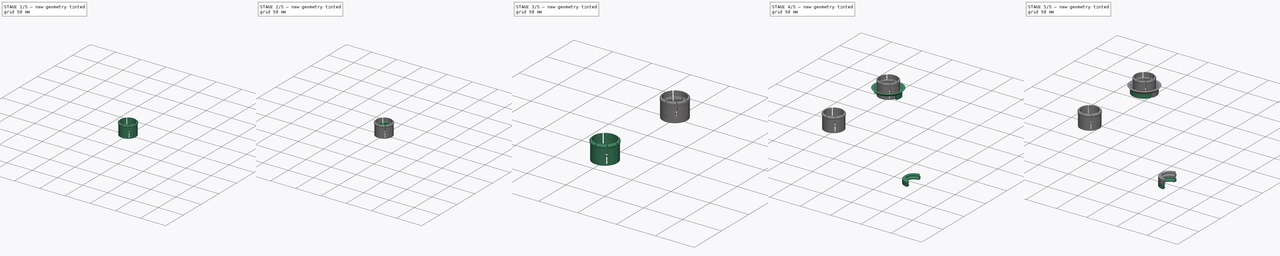
[diagram: build sequence overview — one tinted view per stage of 5, left to right]
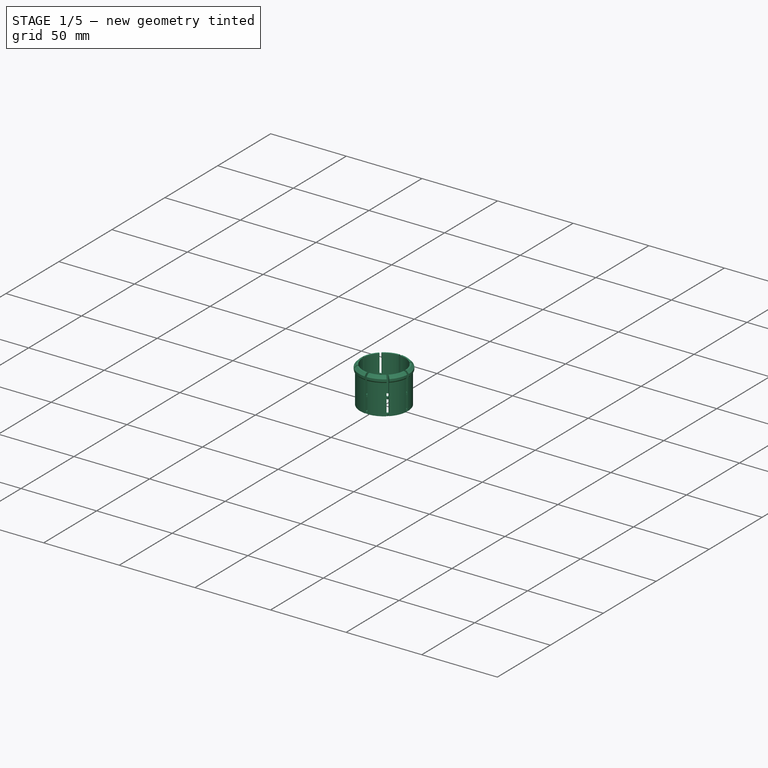
[diagram: stage 1 of 5 — iso view after this stage's code; geometry added in this stage tinted green]
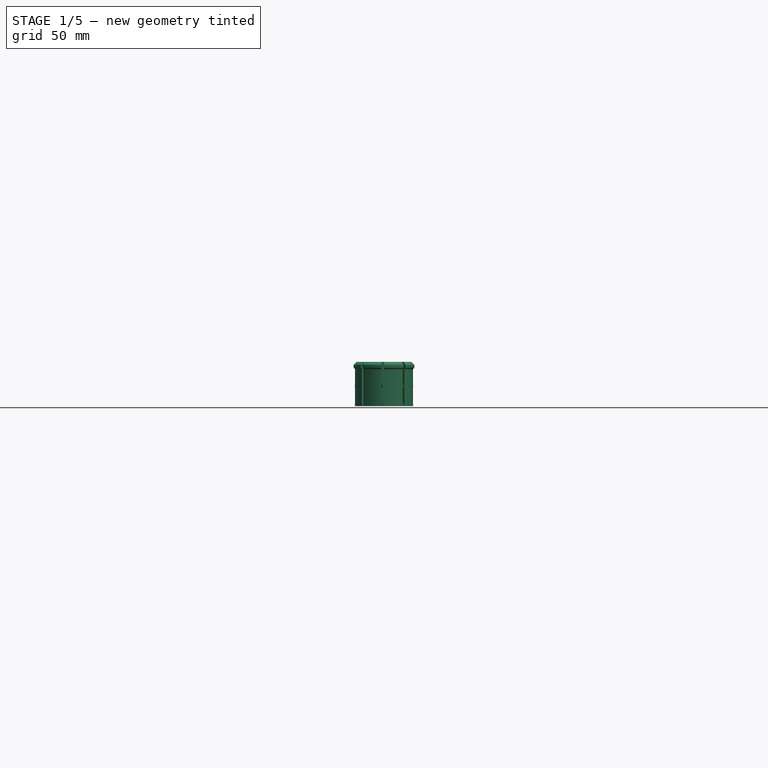
[diagram: stage 1 of 5 — front view after this stage's code; geometry added in this stage tinted green]
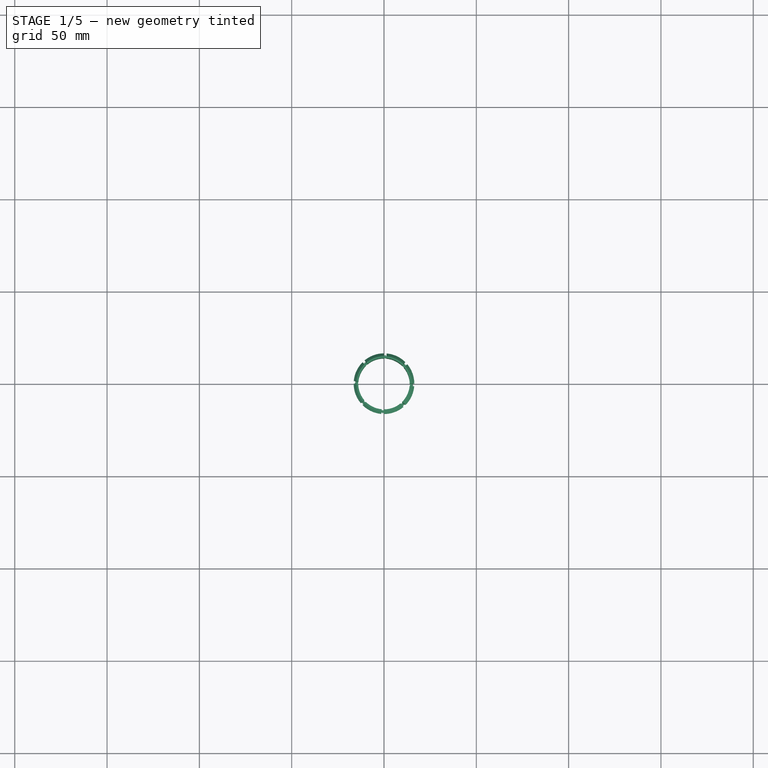
[diagram: stage 1 of 5 — top view after this stage's code; geometry added in this stage tinted green]
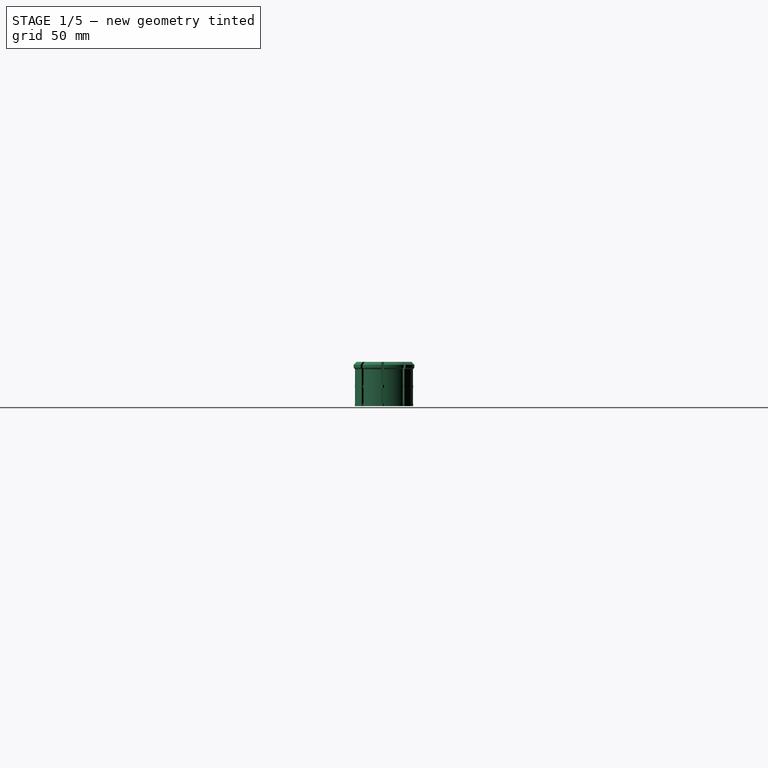
[diagram: stage 1 of 5 — right view after this stage's code; geometry added in this stage tinted green]
FCSTD DOCUMENT  (FreeCAD 0.20R29410 (Git))
Label: the-poor-mans-telescope-eyepiece
License: Attribution-NonCommercial 3.0 Unported (CC BY-NC 3.0)
LicenseURL: https://creativecommons.org/licenses/by-nc/3.0/
objects: Sketcher::SketchObject×15, PartDesign::Revolution×8, PartDesign::Body×8, PartDesign::PolarPattern×5, PartDesign::FeatureBase×5, PartDesign::Groove×4, PartDesign::Pad×2, App::Part×2, PartDesign::Mirrored×1, Spreadsheet::Sheet×1, PartDesign::LinearPattern×1, PartDesign::MultiTransform×1
note: 64 computed .brp shape members not serialized (recipe doc carries the construction recipe); baked Part::Feature solids carry a one-line shape summary decoded from their .brp

FEATURE [Sketcher::SketchObject] Sketch045
  FullyConstrained = true
  MapMode = 5
  Placement = pos=(0,0,0) rot=(1,0,0;1.5708rad)
  Support = -> [XZ_Plane017]
  expr: Constraints[17] = Spreadsheet.eyepiece_radious - 0.15
  expr: Constraints[18] = Spreadsheet.wall_thickness
  sketch-geometry (8):
    g0: LineSegment StartX=-13.925 StartY=20 StartZ=0 EndX=-13.925 EndY=0 EndZ=0
    g1: LineSegment StartX=-13.925 StartY=0 StartZ=0 EndX=-15.725 EndY=0 EndZ=0
    g2: LineSegment StartX=-15.725 StartY=0 StartZ=0 EndX=-15.725 EndY=20 EndZ=0
    g3: LineSegment StartX=-13.925 StartY=24 StartZ=0 EndX=-13.925 EndY=20 EndZ=0
    g4: LineSegment StartX=-15.725 StartY=20 StartZ=0 EndX=-16.425 EndY=20.8342 EndZ=0
    g5: LineSegment StartX=-16.425 StartY=20.8342 StartZ=0 EndX=-16.425 EndY=22.4342 EndZ=0
    g6: LineSegment StartX=-16.425 StartY=22.4342 StartZ=0 EndX=-14.925 EndY=24 EndZ=0
    g7: LineSegment StartX=-14.925 StartY=24 StartZ=0 EndX=-13.925 EndY=24 EndZ=0
  constraints (24):
    c: PointOnObject(g0,g-1)
    c: Vertical(g0)
    c: Coincident(g0,g1)
    c: PointOnObject(g1,g-1)
    c: Coincident(g1,g2)
    c: Vertical(g2)
    c: Coincident(g3,g0)
    c: Vertical(g3)
    c: Horizontal(g0,g2)
    c: Coincident(g2,g4)
    c: Coincident(g4,g5)
    c: Vertical(g5)
    c: Coincident(g5,g6)
    c: DistanceX(g5,g6) = 1.5
    c: DistanceY(g5,g5) = 1.6
    c: DistanceY(g2,g6) = 4
    c: DistanceY(g2,g2) = 20
    c: DistanceX(g1,g-1) = 15.725
    c: DistanceX(g1,g1) = 1.8
    c: Coincident(g7,g6)
    c: Coincident(g7,g3)
    c: DistanceX(g7,g7) = 1
    c: Angle(g4,g2) = 2.44346
    c: Horizontal(g7)
FEATURE [PartDesign::Revolution] Revolution028
  Angle = 40
  Axis = (0,-2e-16,1)
  Base = (0,0,0)
  Placement = pos=(0,0,0) rot=(1,0,0;1.5708rad)
  Profile = -> Sketch045
  ReferenceAxis = -> Sketch045 [V_Axis]
  expr: Angle = 360 / 9
FEATURE [PartDesign::Body] Body018
  BaseFeature = -> Body012
  Group = -> [Clone004]
  Origin = -> Origin027
  Placement = pos=(-98,-26,0) rot=(1,0,0;3.14159rad)
  Tip = -> Clone004
FEATURE [Sketcher::SketchObject] Sketch062
  FullyConstrained = true
  MapMode = 5
  Support = -> [XY_Plane017]
  expr: Constraints[15] = 0.8mm
  expr: Constraints[8] = Spreadsheet.eyepiece_radious - 0.9
  sketch-geometry (6):
    g0: LineSegment StartX=0 StartY=14.975 StartZ=0 EndX=0.65 EndY=15.775 EndZ=0
    g1: LineSegment StartX=0.65 StartY=15.775 StartZ=0 EndX=1.3 EndY=14.975 EndZ=0
    g2: LineSegment StartX=1.3 StartY=14.975 StartZ=0 EndX=1.3 EndY=13.975 EndZ=0
    g3: LineSegment StartX=1.3 StartY=13.975 StartZ=0 EndX=0.65 EndY=14.775 EndZ=0
    g4: LineSegment StartX=0.65 StartY=14.775 StartZ=0 EndX=0 EndY=13.975 EndZ=0
    g5: LineSegment StartX=0 StartY=13.975 StartZ=0 EndX=0 EndY=14.975 EndZ=0
  constraints (18):
    c: PointOnObject(g0,g-2)
    c: Coincident(g0,g1)
    c: Coincident(g1,g2)
    c: Coincident(g2,g3)
    c: Coincident(g3,g4)
    c: PointOnObject(g4,g-2)
    c: Coincident(g4,g5)
    c: Coincident(g5,g0)
    c: DistanceY(g-1,g0) = 14.975
    c: DistanceX(g4,g2) = 1.3
    c: Equal(g4,g3)
    c: Vertical(g3,g0)
    c: Horizontal(g1,g0)
    c: Horizontal(g2,g4)
    c: DistanceY(g5,g5) = 1
    c: DistanceY(g4,g3) = 0.8
    c: Vertical(g2)
    c: DistanceY(g3,g0) = 1
FEATURE [PartDesign::LinearPattern] LinearPattern001
  Direction = -> Z_Axis017
  Length = 10
  Occurrences = 2
  Placement = pos=(0,0,0) rot=(1,0,0;1.5708rad)
FEATURE [PartDesign::PolarPattern] PolarPattern006
  Angle = 360
  Axis = -> Z_Axis017
  Occurrences = 8
  Placement = pos=(0,0,0) rot=(1,0,0;1.5708rad)
FEATURE [Sketcher::SketchObject] Sketch046
  FullyConstrained = true
  MapMode = 5
  Support = -> [XY_Plane017]
  expr: Constraints[2] = Spreadsheet.eyepiece_radious - 0.6
  expr: Constraints[3] = Spreadsheet.eyepiece_radious - Spreadsheet.wall_thickness
  sketch-geometry (2):
    g0: Circle CenterX=0 CenterY=0 CenterZ=0 NormalX=0 NormalY=0 NormalZ=1 AngleXU=0 Radius=15.275
    g1: Circle CenterX=0 CenterY=0 CenterZ=0 NormalX=0 NormalY=0 NormalZ=1 AngleXU=0 Radius=14.075
  constraints (4):
    c: Coincident(g0,g-1)
    c: Coincident(g1,g0)
    c: Radius(g0) = 15.275
    c: Radius(g1) = 14.075
FEATURE [PartDesign::Pad] Pad001
  BaseFeature = -> Revolution028
  Direction = (0,0,1)
  Length = 1.5
  Length2 = 10
  Placement = pos=(0,0,0) rot=(1,0,0;1.5708rad)
  Profile = -> Sketch046
  ReferenceAxis = -> Sketch046 [N_Axis]
  Type = 0
FEATURE [PartDesign::PolarPattern] PolarPattern004
  Angle = 360
  Axis = -> Sketch045 [V_Axis]
  BaseFeature = -> Pad001
  Occurrences = 8
  Originals = -> [Revolution028]
  Placement = pos=(0,0,0) rot=(1,0,0;1.5708rad)
FEATURE [PartDesign::Pad] Pad
  BaseFeature = -> PolarPattern004
  Direction = (0,0,1)
  Length = 1.5
  Length2 = 10
  Placement = pos=(0,0,0) rot=(1,0,0;1.5708rad)
  Profile = -> Sketch062
  ReferenceAxis = -> Sketch062 [N_Axis]
  Type = 0
FEATURE [PartDesign::MultiTransform] MultiTransform
  BaseFeature = -> Pad
  Originals = -> [Pad]
  Placement = pos=(0,0,0) rot=(1,0,0;1.5708rad)
  Transformations = -> [LinearPattern001,PolarPattern006]
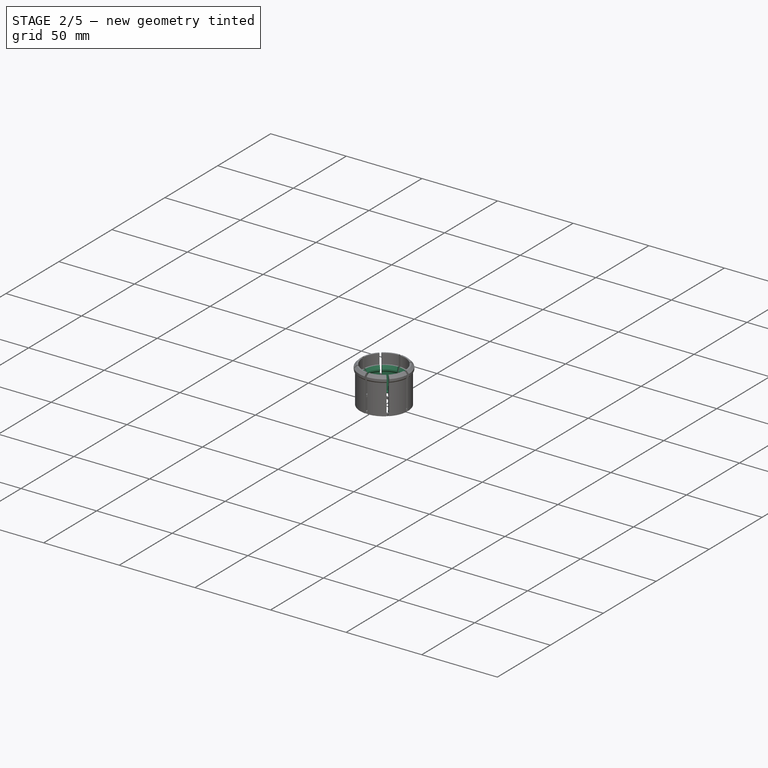
[diagram: stage 2 of 5 — iso view after this stage's code; geometry added in this stage tinted green]
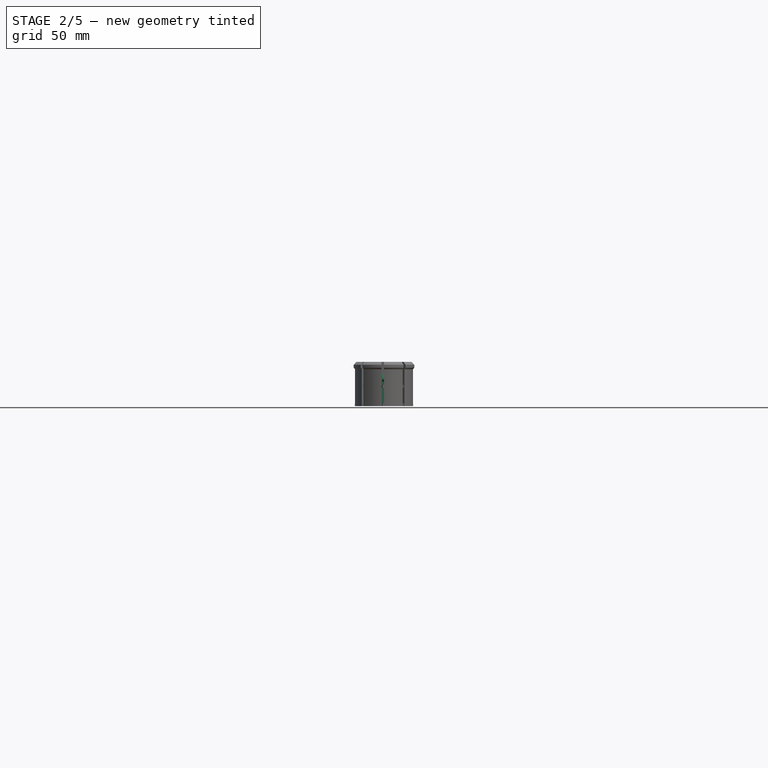
[diagram: stage 2 of 5 — front view after this stage's code; geometry added in this stage tinted green]
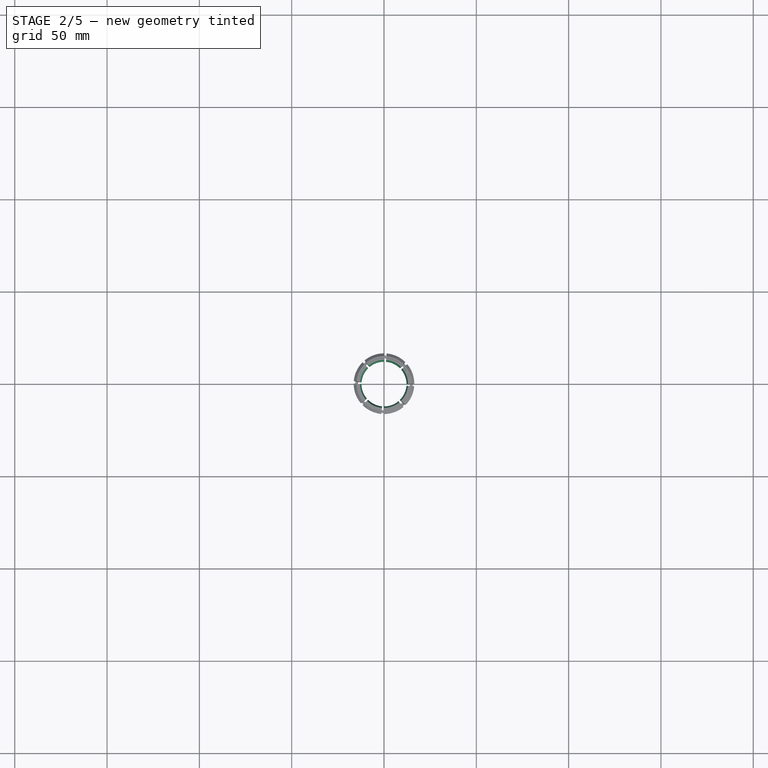
[diagram: stage 2 of 5 — top view after this stage's code; geometry added in this stage tinted green]
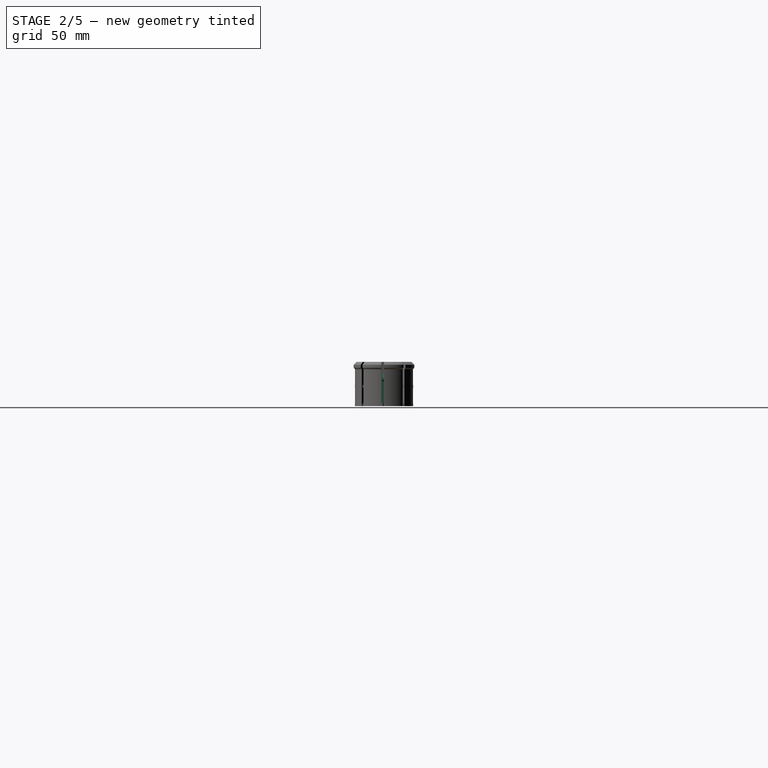
[diagram: stage 2 of 5 — right view after this stage's code; geometry added in this stage tinted green]
FEATURE [PartDesign::Body] Body014
  BaseFeature = -> Body009
  Group = -> [Clone002]
  Origin = -> Origin022
  Placement = pos=(189,-81,7.2) rot=(0,0,1;0rad)
  Tip = -> Clone002
  expr: .Placement.Base.z = Spreadsheet.wall_thickness * 3 + Spreadsheet.eyepiece_lens_thickness
FEATURE [PartDesign::FeatureBase] Clone
  BaseFeature = -> Body009
FEATURE [PartDesign::Body] Body019
  BaseFeature = -> Body009
  Group = -> [Clone005]
  Origin = -> Origin029
  Placement = pos=(189,-81,7.2) rot=(0,0,1;0rad)
  Tip = -> Clone005
FEATURE [App::Part] Part004  label="eyepiece"
  Group = -> [Body012,Body015,Body017,Body014,Body019]
  Origin = -> Origin024
FEATURE [Sketcher::SketchObject] Sketch063
  FullyConstrained = true
  MapMode = 5
  Placement = pos=(0,0,0) rot=(1,0,0;1.5708rad)
  Support = -> [XZ_Plane]
  expr: Constraints[20] = Spreadsheet.negative_radius
  expr: Constraints[21] = 0.8mm
  expr: Constraints[23] = Spreadsheet.negative_thickness
  expr: Constraints[24] = Spreadsheet.eyepiece_radious - 0.15 - Spreadsheet.wall_thickness
  sketch-geometry (9):
    g0: LineSegment StartX=-13.925 StartY=0 StartZ=0 EndX=-12.2 EndY=0.995929 EndZ=0
    g1: LineSegment StartX=-12.2 StartY=0.995929 StartZ=0 EndX=-12.2 EndY=1.89593 EndZ=0
    g2: LineSegment StartX=-12.2 StartY=1.89593 StartZ=0 EndX=-13 EndY=1.89593 EndZ=0
    g3: LineSegment StartX=-13 StartY=1.89593 StartZ=0 EndX=-13 EndY=13.2959 EndZ=0
    g4: LineSegment StartX=-13 StartY=13.2959 StartZ=0 EndX=-12.2 EndY=14.2493 EndZ=0
    g5: LineSegment StartX=-12.2 StartY=14.2493 StartZ=0 EndX=-12.2 EndY=15.1493 EndZ=0
    g6: LineSegment StartX=-13.925 StartY=17.3473 StartZ=0 EndX=-13.925 EndY=0 EndZ=0
    g7: LineSegment StartX=-12.2 StartY=15.1493 StartZ=0 EndX=-13 EndY=17.3473 EndZ=0
    g8: LineSegment StartX=-13 StartY=17.3473 StartZ=0 EndX=-13.925 EndY=17.3473 EndZ=0
  constraints (27):
    c: Coincident(g0,g1)
    c: Vertical(g1)
    c: Coincident(g1,g2)
    c: Horizontal(g2)
    c: Coincident(g2,g3)
    c: Vertical(g3)
    c: Coincident(g3,g4)
    c: Coincident(g4,g5)
    c: Vertical(g5)
    c: Coincident(g6,g0)
    c: Vertical(g6)
    c: Coincident(g5,g7)
    c: Coincident(g7,g8)
    c: Coincident(g8,g6)
    c: Angle(g3,g4) = 2.44346
    c: Angle(g0,g6) = 1.0472
    c: DistanceY(g1,g1) = 0.9
    c: DistanceY(g5,g5) = 0.9
    c: Vertical(g7,g3)
    c: Horizontal(g8)
    c: DistanceX(g2,g-1) = 13
    c: DistanceX(g2,g2) = 0.8
    c: Vertical(g4,g1)
    c: DistanceY(g3,g3) = 11.4
    c: DistanceX(g6,g-1) = 13.925
    c: PointOnObject(g0,g-1)
    c: Angle(g7,g5) = 2.79253
FEATURE [PartDesign::Revolution] Revolution034
  Angle = 40
  Axis = (0,-2e-16,1)
  Base = (0,0,0)
  BaseFeature = -> Clone
  Profile = -> Sketch063
  ReferenceAxis = -> Sketch063 [V_Axis]
FEATURE [PartDesign::PolarPattern] PolarPattern
  Angle = 360
  Axis = -> Sketch063 [V_Axis]
  BaseFeature = -> Revolution034
  Occurrences = 8
  Originals = -> [Revolution034]
FEATURE [Sketcher::SketchObject] Sketch064
  FullyConstrained = true
  MapMode = 5
  Placement = pos=(0,0,0) rot=(1,0,0;1.5708rad)
  Support = -> [XZ_Plane]
  sketch-geometry (4):
    g0: LineSegment StartX=-16 StartY=14 StartZ=0 EndX=0 EndY=14 EndZ=0
    g1: LineSegment StartX=0 StartY=14 StartZ=0 EndX=0 EndY=9 EndZ=0
    g2: LineSegment StartX=0 StartY=9 StartZ=0 EndX=-16 EndY=9 EndZ=0
    g3: LineSegment StartX=-16 StartY=9 StartZ=0 EndX=-16 EndY=14 EndZ=0
  constraints (12):
    c: Coincident(g0,g1)
    c: Coincident(g1,g2)
    c: Coincident(g2,g3)
    c: Coincident(g3,g0)
    c: Horizontal(g0)
    c: Horizontal(g2)
    c: Vertical(g1)
    c: Vertical(g3)
    c: DistanceY(g3,g3) = 5
    c: DistanceY(g-1,g2) = 9
    c: DistanceX(g0,g0) = 16
    c: PointOnObject(g1,g-2)
FEATURE [PartDesign::Groove] Groove
  Angle = 5
  Axis = (0,-2e-16,1)
  Base = (0,0,0)
  BaseFeature = -> PolarPattern
  Profile = -> Sketch064
  ReferenceAxis = -> Sketch064 [V_Axis]
  Reversed = true
FEATURE [PartDesign::PolarPattern] PolarPattern007
  Angle = 360
  Axis = -> Sketch064 [V_Axis]
  BaseFeature = -> Groove
  Occurrences = 2
  Originals = -> [Groove]
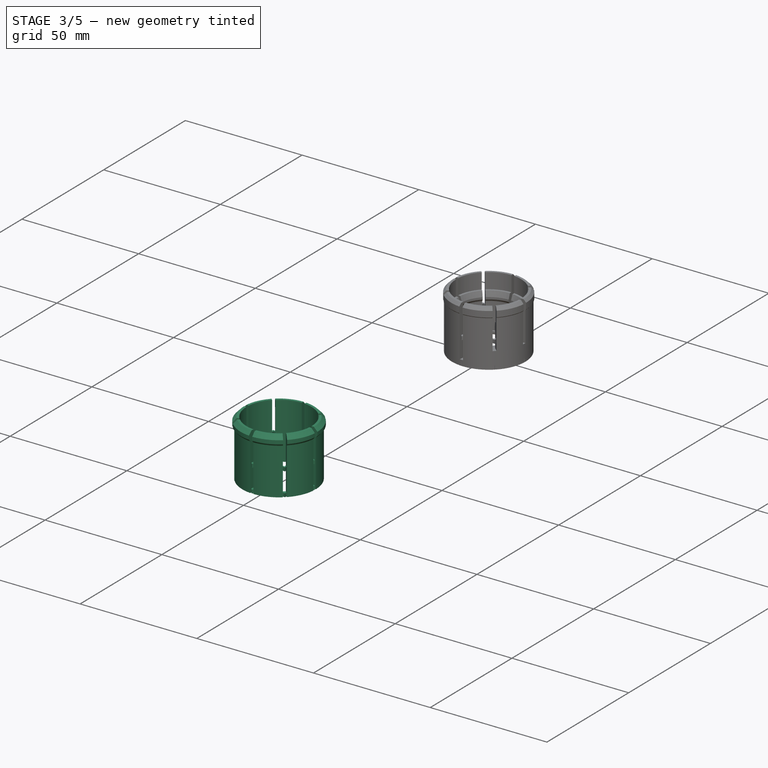
[diagram: stage 3 of 5 — iso view after this stage's code; geometry added in this stage tinted green]
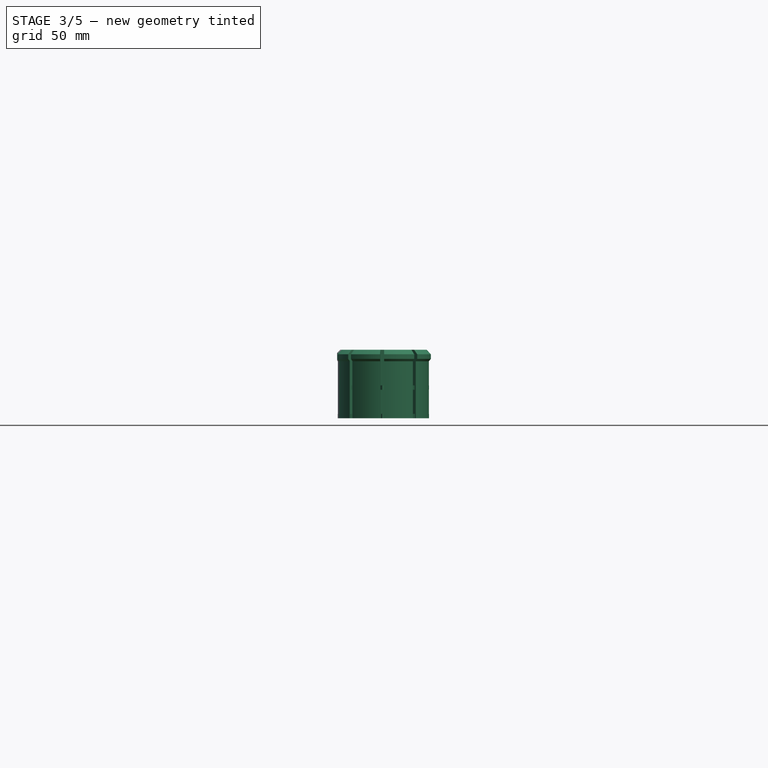
[diagram: stage 3 of 5 — front view after this stage's code; geometry added in this stage tinted green]
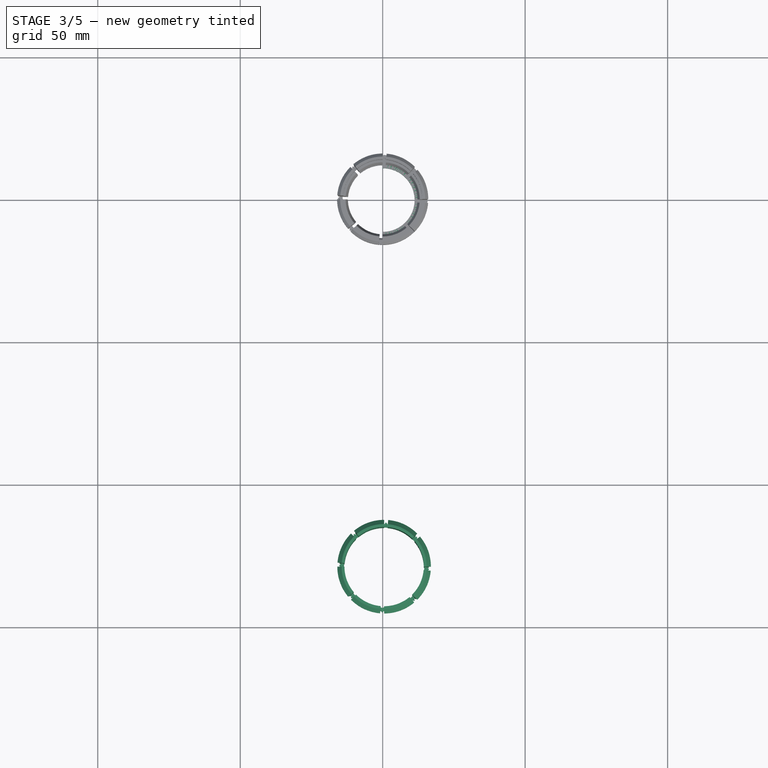
[diagram: stage 3 of 5 — top view after this stage's code; geometry added in this stage tinted green]
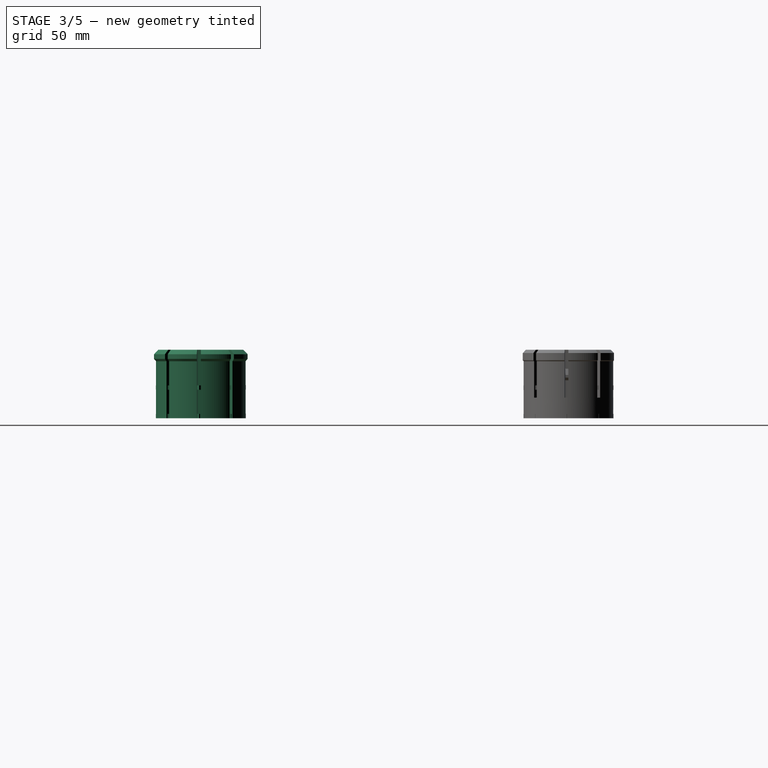
[diagram: stage 3 of 5 — right view after this stage's code; geometry added in this stage tinted green]
FEATURE [Sketcher::SketchObject] Sketch053
  FullyConstrained = true
  MapMode = 5
  Placement = pos=(0,0,0) rot=(0.57735,0.57735,0.57735;2.0944rad)
  Support = -> [YZ_Plane020]
  expr: Constraints[11] = Spreadsheet.wall_thickness
  expr: Constraints[12] = Spreadsheet.eyepiece_lens_diameter / 2
  expr: Constraints[13] = Spreadsheet.eyepiece_radious - 0.15
  expr: Constraints[18] = Spreadsheet.wall_thickness
  expr: Constraints[19] = Spreadsheet.eyepiece_lens_thickness
  expr: Constraints[22] = Spreadsheet.wall_thickness
  expr: Constraints[23] = Spreadsheet.wall_thickness * 3 + Spreadsheet.eyepiece_lens_thickness
  sketch-geometry (8):
    g0: LineSegment StartX=-11.2 StartY=1.8 StartZ=0 EndX=-13 EndY=1.8 EndZ=0
    g1: LineSegment StartX=-13 StartY=1.8 StartZ=0 EndX=-13 EndY=3.6 EndZ=0
    g2: LineSegment StartX=-13 StartY=3.6 StartZ=0 EndX=-11.2 EndY=5.4 EndZ=0
    g3: LineSegment StartX=-11.2 StartY=5.4 StartZ=0 EndX=-11.2 EndY=7.2 EndZ=0
    g4: LineSegment StartX=-11.2 StartY=7.2 StartZ=0 EndX=-15.725 EndY=7.2 EndZ=0
    g5: LineSegment StartX=-15.725 StartY=7.2 StartZ=0 EndX=-15.725 EndY=0 EndZ=0
    g6: LineSegment StartX=-15.725 StartY=0 StartZ=0 EndX=-11.2 EndY=0 EndZ=0
    g7: LineSegment StartX=-11.2 StartY=0 StartZ=0 EndX=-11.2 EndY=1.8 EndZ=0
  constraints (24):
    c: PointOnObject(g5,g-1)
    c: Horizontal(g0)
    c: Coincident(g0,g1)
    c: Vertical(g1)
    c: Coincident(g1,g2)
    c: Coincident(g2,g3)
    c: Vertical(g3)
    c: Coincident(g3,g4)
    c: Horizontal(g4)
    c: Coincident(g4,g5)
    c: Vertical(g5)
    c: DistanceX(g1,g3) = 1.8
    c: DistanceX(g1,g-1) = 13
    c: DistanceX(g5,g-1) = 15.725
    c: Coincident(g5,g6)
    c: PointOnObject(g6,g-1)
    c: Coincident(g6,g7)
    c: Vertical(g7)
    c: DistanceY(g3,g3) = 1.8
    c: DistanceY(g1,g1) = 1.8
    c: Coincident(g7,g0)
    c: Equal(g3,g7)
    c: DistanceX(g0,g0) = 1.8
    c: DistanceY(g5,g5) = 7.2
FEATURE [PartDesign::Revolution] Revolution029
  Angle = 180
  Axis = (-2e-16,3e-16,1)
  Base = (0,0,0)
  Placement = pos=(0,0,0) rot=(0.57735,0.57735,0.57735;2.0944rad)
  Profile = -> Sketch053
  ReferenceAxis = -> Sketch053 [V_Axis]
FEATURE [Sketcher::SketchObject] Sketch054
  FullyConstrained = true
  MapMode = 5
  Placement = pos=(0,0,0) rot=(0.57735,0.57735,0.57735;2.0944rad)
  Support = -> [YZ_Plane020]
FEATURE [Sketcher::SketchObject] Sketch055
  FullyConstrained = true
  MapMode = 5
  Placement = pos=(0,0,0) rot=(0.57735,0.57735,0.57735;2.0944rad)
  Support = -> [YZ_Plane020]
  expr: Constraints[11] = Spreadsheet.wall_thickness
  expr: Constraints[13] = 90 + 45
  expr: Constraints[2] = Spreadsheet.eyepiece_radious - 0.15
  sketch-geometry (5):
    g0: LineSegment StartX=-15.725 StartY=2.4 StartZ=0 EndX=-15.725 EndY=0 EndZ=0
    g1: LineSegment StartX=-15.725 StartY=2.4 StartZ=0 EndX=-13.925 EndY=2.4 EndZ=0
    g2: LineSegment StartX=-13.925 StartY=2.4 StartZ=0 EndX=-13.325 EndY=1.8 EndZ=0
    g3: LineSegment StartX=-13.325 StartY=1.8 StartZ=0 EndX=-13.325 EndY=0 EndZ=0
    g4: LineSegment StartX=-13.325 StartY=0 StartZ=0 EndX=-15.725 EndY=0 EndZ=0
  constraints (15):
    c: PointOnObject(g0,g-1)
    c: Vertical(g0)
    c: DistanceX(g0,g-1) = 15.725
    c: Coincident(g0,g1)
    c: Horizontal(g1)
    c: Coincident(g1,g2)
    c: Coincident(g2,g3)
    c: PointOnObject(g3,g-1)
    c: Vertical(g3)
    c: Coincident(g3,g4)
    c: Coincident(g4,g0)
    c: DistanceX(g1,g1) = 1.8
    c: Equal(g1,g3)
    c: Angle(g2,g3) = 2.35619
    c: DistanceY(g2,g1) = 0.6
FEATURE [PartDesign::Revolution] Revolution030
  Angle = 5
  Axis = (-2e-16,3e-16,1)
  Base = (0,0,0)
  BaseFeature = -> Revolution029
  Placement = pos=(0,0,0) rot=(0.57735,0.57735,0.57735;2.0944rad)
  Profile = -> Sketch055
  ReferenceAxis = -> Sketch055 [V_Axis]
  Reversed = true
FEATURE [Sketcher::SketchObject] Sketch056
  FullyConstrained = true
  MapMode = 5
  Placement = pos=(0,0,0) rot=(0.57735,0.57735,0.57735;2.0944rad)
  Support = -> [YZ_Plane020]
  expr: Constraints[11] = Spreadsheet.wall_thickness + 0.3
  expr: Constraints[14] = 0.9mm
  expr: Constraints[2] = Spreadsheet.eyepiece_radious - 0.15
  sketch-geometry (5):
    g0: LineSegment StartX=15.725 StartY=0 StartZ=0 EndX=15.725 EndY=3 EndZ=0
    g1: LineSegment StartX=15.725 StartY=3 StartZ=0 EndX=13.625 EndY=3 EndZ=0
    g2: LineSegment StartX=13.625 StartY=3 StartZ=0 EndX=12.725 EndY=2.1 EndZ=0
    g3: LineSegment StartX=12.725 StartY=2.1 StartZ=0 EndX=12.725 EndY=0 EndZ=0
    g4: LineSegment StartX=12.725 StartY=0 StartZ=0 EndX=15.725 EndY=0 EndZ=0
  constraints (15):
    c: PointOnObject(g0,g-1)
    c: Vertical(g0)
    c: DistanceX(g-1,g0) = 15.725
    c: Coincident(g0,g1)
    c: Horizontal(g1)
    c: Coincident(g1,g2)
    c: Coincident(g2,g3)
    c: PointOnObject(g3,g-1)
    c: Vertical(g3)
    c: Coincident(g3,g4)
    c: Coincident(g4,g0)
    c: DistanceY(g3,g3) = 2.1
    c: Equal(g3,g1)
    c: Angle(g3,g2) = 2.35619
    c: DistanceY(g2,g1) = 0.9
FEATURE [PartDesign::Groove] Groove003
  Angle = 5
  Axis = (-2e-16,3e-16,1)
  Base = (0,0,0)
  BaseFeature = -> Revolution030
  Placement = pos=(0,0,0) rot=(0.57735,0.57735,0.57735;2.0944rad)
  Profile = -> Sketch056
  ReferenceAxis = -> Sketch056 [V_Axis]
  Reversed = true
FEATURE [PartDesign::FeatureBase] Clone005
  BaseFeature = -> Body009
  Placement = pos=(0.5,-129,0) rot=(0,0,1;0rad)
FEATURE [Sketcher::SketchObject] Sketch065
  FullyConstrained = true
  MapMode = 5
  Placement = pos=(0,0,0) rot=(1,0,0;1.5708rad)
  Support = -> [XZ_Plane]
  sketch-geometry (4):
    g0: LineSegment StartX=-17 StartY=23 StartZ=0 EndX=-16 EndY=23 EndZ=0
    g1: LineSegment StartX=-16 StartY=23 StartZ=0 EndX=-16 EndY=20 EndZ=0
    g2: LineSegment StartX=-16 StartY=20 StartZ=0 EndX=-17 EndY=20 EndZ=0
    g3: LineSegment StartX=-17 StartY=20 StartZ=0 EndX=-17 EndY=23 EndZ=0
  constraints (12):
    c: Coincident(g0,g1)
    c: Coincident(g1,g2)
    c: Coincident(g2,g3)
    c: Coincident(g3,g0)
    c: Horizontal(g0)
    c: Horizontal(g2)
    c: Vertical(g1)
    c: Vertical(g3)
    c: DistanceY(g3,g3) = 3
    c: DistanceY(g-1,g2) = 20
    c: DistanceX(g0,g-1) = 16
    c: DistanceX(g0,g0) = 1
FEATURE [PartDesign::Groove] Groove005
  Angle = 360
  Axis = (0,-2e-16,1)
  Base = (0,0,0)
  BaseFeature = -> PolarPattern007
  Profile = -> Sketch065
  ReferenceAxis = -> Sketch065 [V_Axis]
  Reversed = true
FEATURE [PartDesign::Body] Body
  BaseFeature = -> Body009
  Group = -> [Clone,Sketch063,Revolution034,PolarPattern,Sketch064,Groove,PolarPattern007,Sketch065,Groove005]
  Origin = -> Origin
  Placement = pos=(91,184,0) rot=(0,0,1;0rad)
  Tip = -> Groove005
FEATURE [App::Part] Part  label="eyepiece negative"
  Group = -> [Body018,Body]
  Origin = -> Origin028
  Placement = pos=(0,0,-125) rot=(0,0,1;0rad)
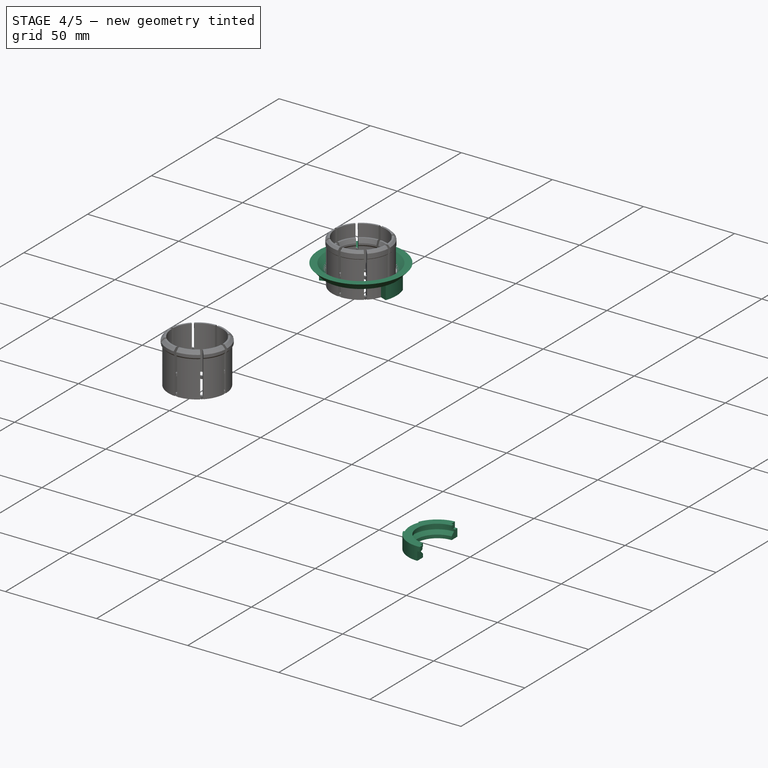
[diagram: stage 4 of 5 — iso view after this stage's code; geometry added in this stage tinted green]
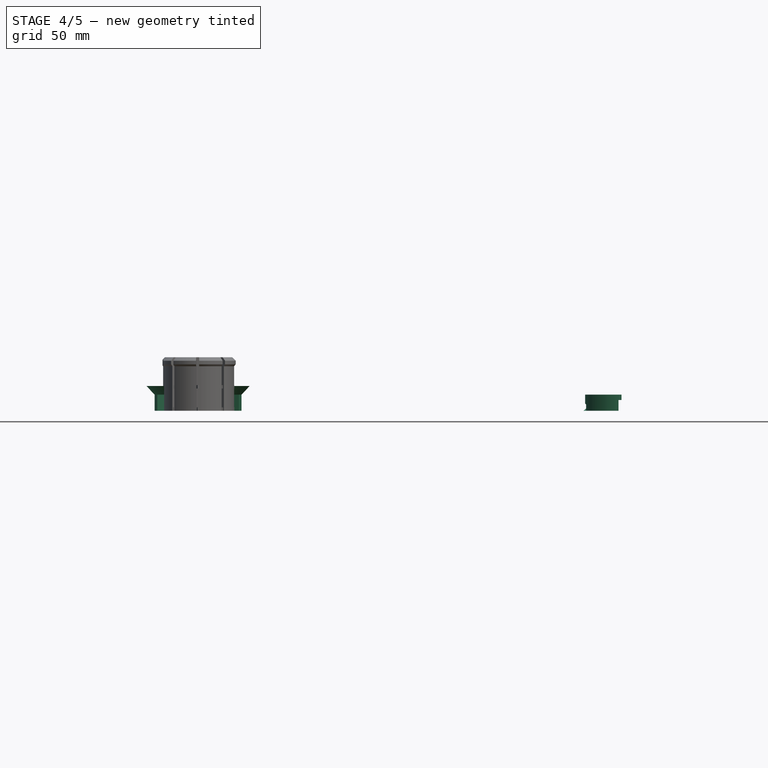
[diagram: stage 4 of 5 — front view after this stage's code; geometry added in this stage tinted green]
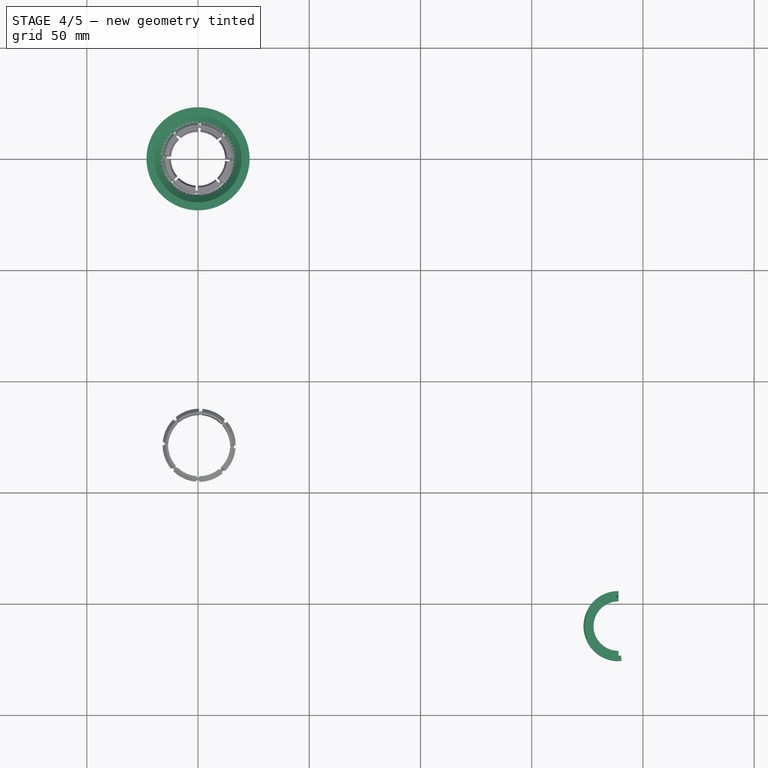
[diagram: stage 4 of 5 — top view after this stage's code; geometry added in this stage tinted green]
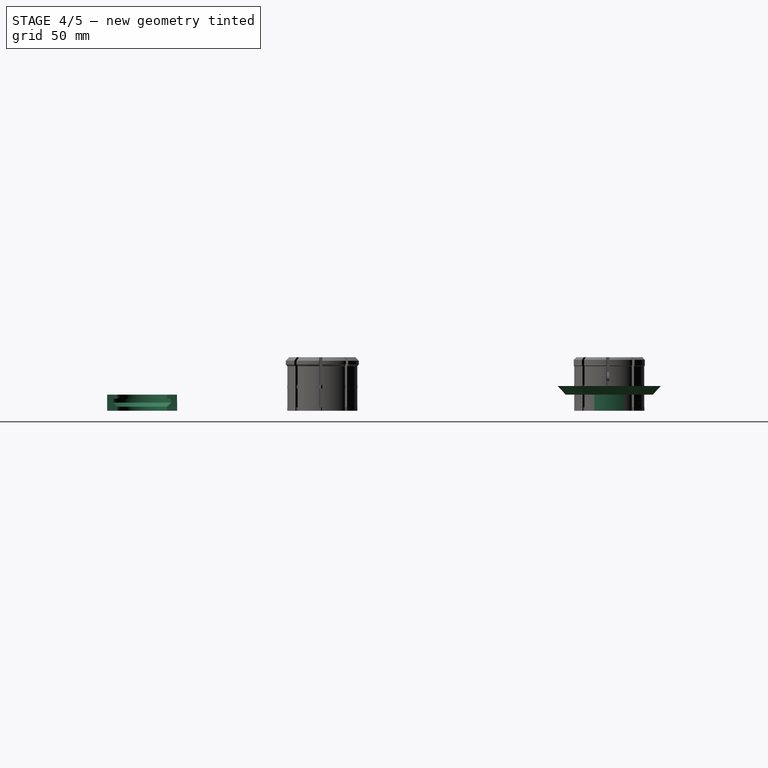
[diagram: stage 4 of 5 — right view after this stage's code; geometry added in this stage tinted green]
FEATURE [Sketcher::SketchObject] Sketch057
  FullyConstrained = true
  MapMode = 5
  Placement = pos=(0,0,0) rot=(1,0,0;1.5708rad)
  Support = -> [XZ_Plane020]
  expr: Constraints[12] = Spreadsheet.wall_thickness * 3 + Spreadsheet.eyepiece_lens_thickness
  expr: Constraints[1] = Spreadsheet.eyepiece_radious - 0.15
  expr: Constraints[7] = Spreadsheet.wall_thickness / 4 + 0.3
  expr: Constraints[8] = Spreadsheet.wall_thickness / 2
  sketch-geometry (7):
    g0: LineSegment StartX=15.725 StartY=0 StartZ=0 EndX=15.725 EndY=7.2 EndZ=0
    g1: LineSegment StartX=14.975 StartY=0 StartZ=0 EndX=14.975 EndY=3.93 EndZ=0
    g2: LineSegment StartX=14.975 StartY=3.93 StartZ=0 EndX=14.075 EndY=4.83 EndZ=0
    g3: LineSegment StartX=14.075 StartY=4.83 StartZ=0 EndX=14.075 EndY=5.73 EndZ=0
    g4: LineSegment StartX=14.075 StartY=5.73 StartZ=0 EndX=14.975 EndY=6.63 EndZ=0
    g5: LineSegment StartX=14.975 StartY=0 StartZ=0 EndX=15.725 EndY=0 EndZ=0
    g6: LineSegment StartX=14.975 StartY=6.63 StartZ=0 EndX=15.725 EndY=7.2 EndZ=0
  constraints (21):
    c: Vertical(g0)
    c: DistanceX(g-1,g0) = 15.725
    c: Vertical(g1)
    c: Coincident(g1,g2)
    c: Coincident(g2,g3)
    c: Vertical(g3)
    c: Coincident(g3,g4)
    c: DistanceX(g1,g0) = 0.75
    c: DistanceX(g3,g4) = 0.9
    c: DistanceY(g3,g3) = 0.9
    c: Angle(g2,g1) = 2.35619
    c: PointOnObject(g0,g-1)
    c: DistanceY(g0,g0) = 7.2
    c: DistanceX(g2,g1) = 0.9
    c: Coincident(g5,g1)
    c: Coincident(g5,g0)
    c: Horizontal(g5)
    c: Coincident(g6,g4)
    c: Coincident(g6,g0)
    c: DistanceY(g4,g0) = 0.57
    c: Equal(g2,g4)
FEATURE [PartDesign::Groove] Groove004
  Angle = 45
  Axis = (0,-2e-16,1)
  Base = (0,0,0)
  BaseFeature = -> Groove003
  Midplane = true
  Placement = pos=(0,0,0) rot=(0.57735,0.57735,0.57735;2.0944rad)
  Profile = -> Sketch057
  ReferenceAxis = -> Sketch057 [V_Axis]
FEATURE [PartDesign::Body] Body012
  Group = -> [Sketch053,Revolution029,Sketch054,Sketch055,Revolution030,Sketch056,Groove003,Sketch057,Groove004]
  Origin = -> Origin020
  Placement = pos=(189.5,-210,0) rot=(0,0,1;3.14159rad)
  Tip = -> Groove004
FEATURE [Sketcher::SketchObject] Sketch058
  FullyConstrained = true
  MapMode = 5
  Placement = pos=(0,0,0) rot=(1,0,0;1.5708rad)
  Support = -> [XZ_Plane023]
  expr: Constraints[18] = Spreadsheet.eyepiece_radious - Spreadsheet.wall_thickness / 4 + 0.1
  expr: Constraints[21] = Spreadsheet.wall_thickness * 2.25 - 0.05
  expr: Constraints[2] = Spreadsheet.wall_thickness * 3 + Spreadsheet.eyepiece_lens_thickness
  sketch-geometry (9):
    g0: LineSegment StartX=19.525 StartY=0 StartZ=0 EndX=19.525 EndY=7.2 EndZ=0
    g1: LineSegment StartX=19.525 StartY=0 StartZ=0 EndX=15.775 EndY=0 EndZ=0
    g2: LineSegment StartX=15.525 StartY=0.6 StartZ=0 EndX=14.625 EndY=1.5 EndZ=0
    g3: LineSegment StartX=14.625 StartY=1.5 StartZ=0 EndX=14.625 EndY=2.4 EndZ=0
    g4: LineSegment StartX=14.625 StartY=2.4 StartZ=0 EndX=15.525 EndY=3.3 EndZ=0
    g5: LineSegment StartX=15.525 StartY=3.3 StartZ=0 EndX=15.525 EndY=7.2 EndZ=0
    g6: LineSegment StartX=15.525 StartY=7.2 StartZ=0 EndX=19.525 EndY=7.2 EndZ=0
    g7: LineSegment StartX=15.525 StartY=0.6 StartZ=0 EndX=15.525 EndY=0.3 EndZ=0
    g8: LineSegment StartX=15.525 StartY=0.3 StartZ=0 EndX=15.775 EndY=0 EndZ=0
  constraints (27):
    c: PointOnObject(g0,g-1)
    c: Vertical(g0)
    c: DistanceY(g0,g0) = 7.2
    c: Coincident(g0,g1)
    c: PointOnObject(g1,g-1)
    c: DistanceY(g1,g2) = 0.6
    c: Coincident(g2,g3)
    c: Vertical(g3)
    c: Coincident(g3,g4)
    c: DistanceX(g3,g4) = 0.9
    c: DistanceY(g3,g3) = 0.9
    c: Equal(g4,g2)
    c: Coincident(g4,g5)
    c: Vertical(g5)
    c: Horizontal(g5,g0)
    c: Vertical(g2,g4)
    c: Coincident(g6,g5)
    c: Coincident(g6,g0)
    c: DistanceX(g-1,g5) = 15.525
    c: Coincident(g7,g2)
    c: Vertical(g7)
    c: DistanceX(g7,g0) = 4
    c: Coincident(g8,g7)
    c: Coincident(g8,g1)
    c: DistanceY(g1,g7) = 0.3
    c: DistanceX(g7,g1) = 0.25
    c: Angle(g2,g7) = 2.35619
FEATURE [Sketcher::SketchObject] Sketch059
  FullyConstrained = true
  MapMode = 5
  Placement = pos=(0,0,0) rot=(1,0,0;1.5708rad)
  Support = -> [XZ_Plane023]
  expr: Constraints[0] = Spreadsheet.wall_thickness * 3 + Spreadsheet.eyepiece_lens_thickness
  expr: Constraints[4] = Spreadsheet.wall_thickness * 2 + 0.3
  expr: Constraints[8] = Spreadsheet.eyepiece_radious + 0.1
  expr: Constraints[9] = Spreadsheet.wall_thickness * 2
  sketch-geometry (4):
    g0: LineSegment StartX=15.975 StartY=7.2 StartZ=0 EndX=19.575 EndY=11.1 EndZ=0
    g1: LineSegment StartX=19.575 StartY=11.1 StartZ=0 EndX=23.175 EndY=11.1 EndZ=0
    g2: LineSegment StartX=19.575 StartY=7.2 StartZ=0 EndX=23.175 EndY=11.1 EndZ=0
    g3: LineSegment StartX=15.975 StartY=7.2 StartZ=0 EndX=19.575 EndY=7.2 EndZ=0
  constraints (12):
    c: DistanceY(g-1,g2) = 7.2
    c: Coincident(g0,g1)
    c: Horizontal(g1)
    c: Coincident(g2,g1)
    c: DistanceY(g2,g0) = 3.9
    c: Coincident(g3,g0)
    c: Coincident(g3,g2)
    c: Horizontal(g3)
    c: DistanceX(g-1,g0) = 15.975
    c: DistanceX(g3,g3) = 3.6
    c: Equal(g3,g1)
    c: Vertical(g0,g2)
FEATURE [PartDesign::Revolution] Revolution031
  Angle = 360
  Axis = (0,-2e-16,1)
  Base = (0,0,0)
  Placement = pos=(0,0,0) rot=(1,0,0;1.5708rad)
  Profile = -> Sketch059
  ReferenceAxis = -> Sketch059 [V_Axis]
  Reversed = true
FEATURE [PartDesign::Revolution] Revolution032
  Angle = 40
  Axis = (0,-2e-16,1)
  Base = (0,0,0)
  BaseFeature = -> Revolution031
  Midplane = true
  Placement = pos=(0,0,0) rot=(1,0,0;1.5708rad)
  Profile = -> Sketch058
  ReferenceAxis = -> Sketch058 [V_Axis]
  Reversed = true
FEATURE [PartDesign::PolarPattern] PolarPattern005
  Angle = 360
  Axis = -> Sketch058 [V_Axis]
  BaseFeature = -> Revolution032
  Occurrences = 2
  Originals = -> [Revolution032]
  Placement = pos=(0,0,0) rot=(1,0,0;1.5708rad)
FEATURE [PartDesign::Body] Body015
  Group = -> [Sketch058,Sketch059,Revolution031,Revolution032,PolarPattern005,Sketch060,Revolution033,Mirrored010,Sketch,Revolution]
  Origin = -> Origin023
  Placement = pos=(155,-249,0) rot=(0,0,1;0rad)
  Tip = -> Revolution
FEATURE [PartDesign::FeatureBase] Clone004
  BaseFeature = -> Body012
  Placement = pos=(189,-210,7.2) rot=(0,1,0;3.14159rad)
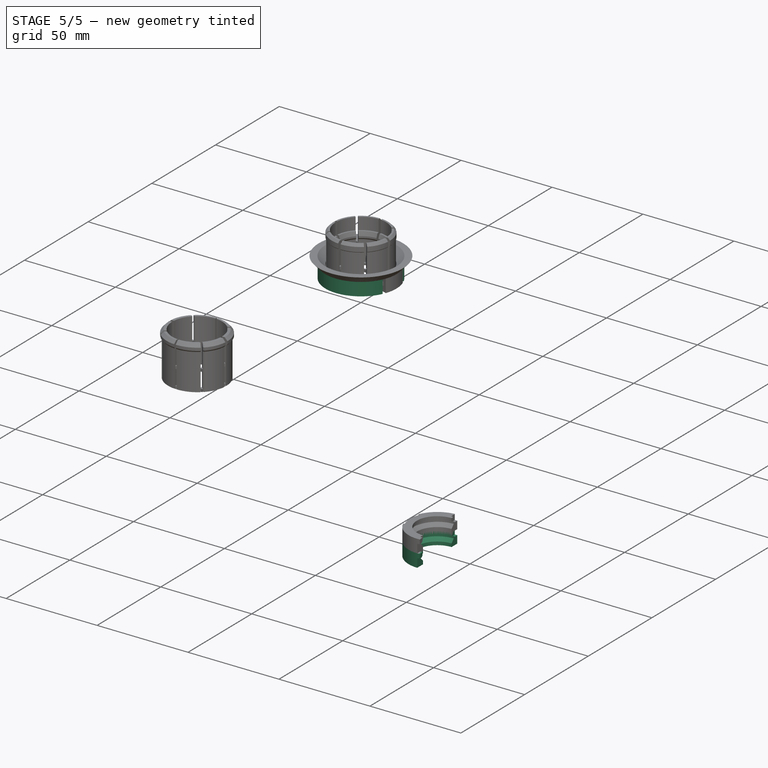
[diagram: stage 5 of 5 — iso view after this stage's code; geometry added in this stage tinted green]
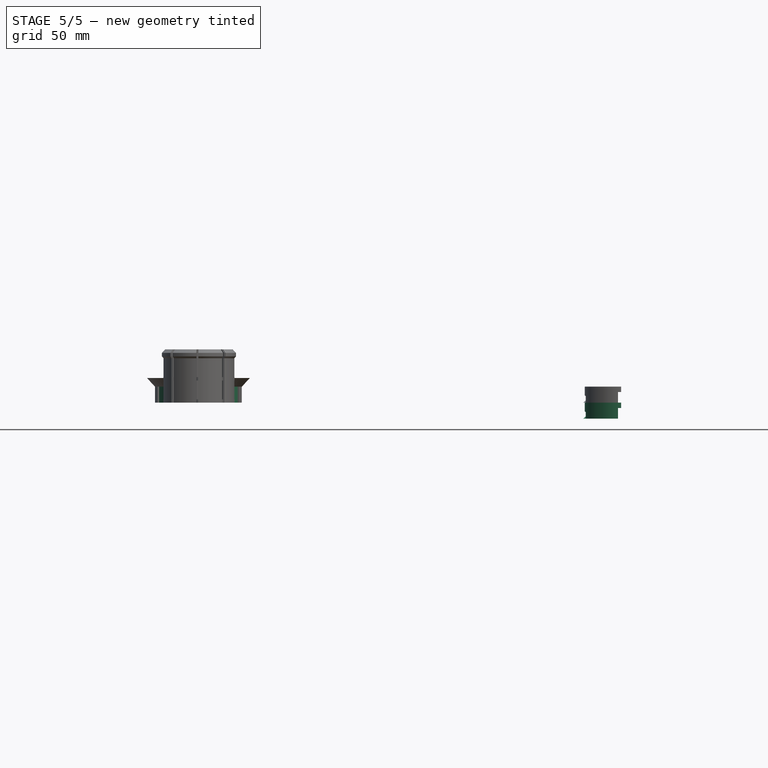
[diagram: stage 5 of 5 — front view after this stage's code; geometry added in this stage tinted green]
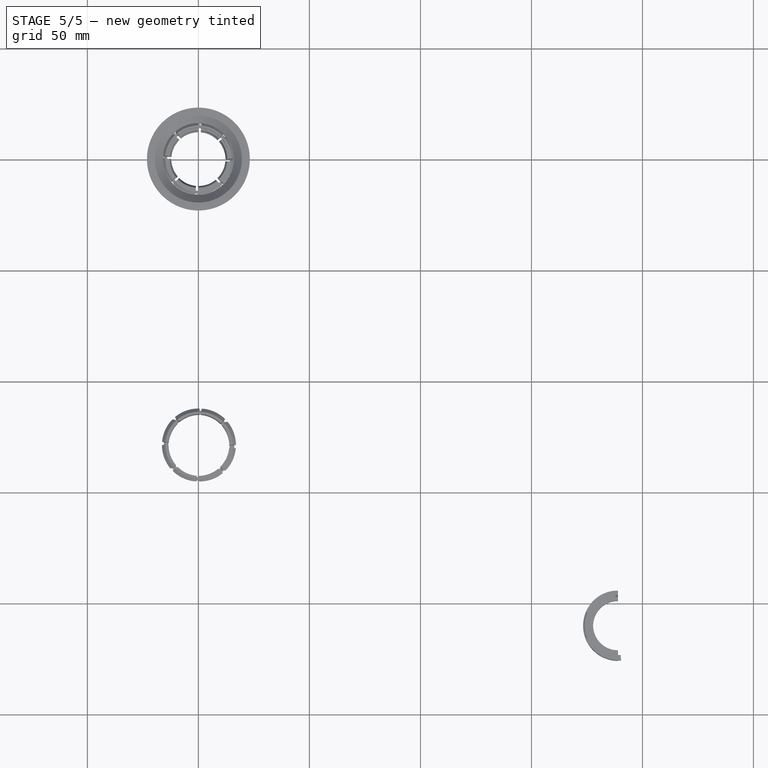
[diagram: stage 5 of 5 — top view after this stage's code; geometry added in this stage tinted green]
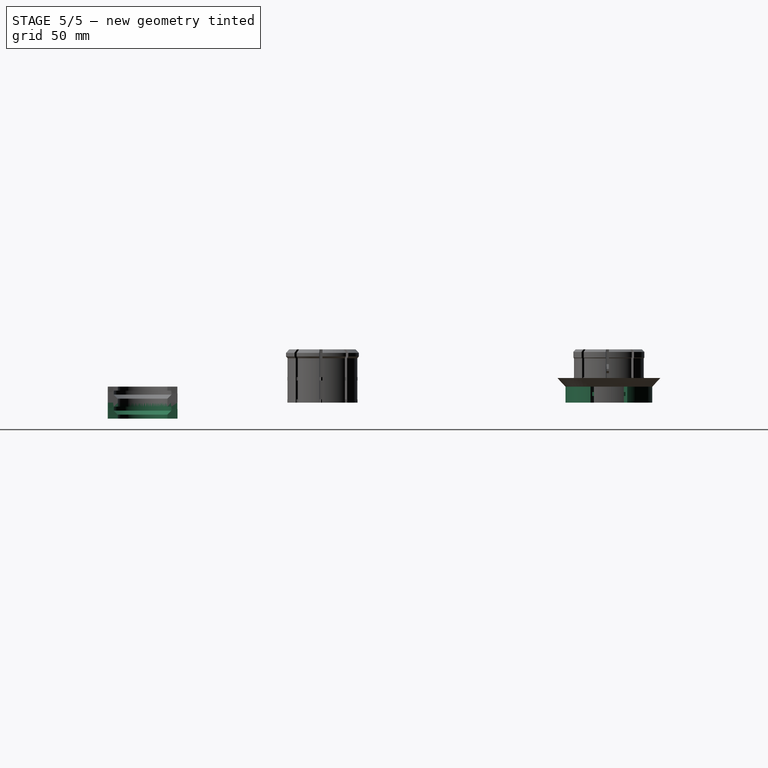
[diagram: stage 5 of 5 — right view after this stage's code; geometry added in this stage tinted green]
FEATURE [Sketcher::SketchObject] Sketch060
  FullyConstrained = true
  MapMode = 5
  Placement = pos=(0,0,0) rot=(0.57735,0.57735,0.57735;2.0944rad)
  Support = -> [YZ_Plane023]
  expr: Constraints[10] = Spreadsheet.wall_thickness * 2 - 0.05
  expr: Constraints[11] = Spreadsheet.eyepiece_radious + 0.1
  expr: Constraints[9] = Spreadsheet.wall_thickness * 3 + Spreadsheet.eyepiece_lens_thickness
  sketch-geometry (4):
    g0: LineSegment StartX=-19.525 StartY=0 StartZ=0 EndX=-15.975 EndY=0 EndZ=0
    g1: LineSegment StartX=-15.975 StartY=0 StartZ=0 EndX=-15.975 EndY=7.2 EndZ=0
    g2: LineSegment StartX=-15.975 StartY=7.2 StartZ=0 EndX=-19.525 EndY=7.2 EndZ=0
    g3: LineSegment StartX=-19.525 StartY=7.2 StartZ=0 EndX=-19.525 EndY=0 EndZ=0
  constraints (12):
    c: Coincident(g0,g1)
    c: Coincident(g1,g2)
    c: Coincident(g2,g3)
    c: Coincident(g3,g0)
    c: Horizontal(g0)
    c: Horizontal(g2)
    c: Vertical(g1)
    c: Vertical(g3)
    c: PointOnObject(g0,g-1)
    c: DistanceY(g3,g3) = 7.2
    c: DistanceX(g0,g0) = 3.55
    c: DistanceX(g0,g-1) = 15.975
FEATURE [PartDesign::Revolution] Revolution033
  Angle = 130
  Axis = (-2e-16,3e-16,1)
  Base = (0,0,0)
  BaseFeature = -> PolarPattern005
  Midplane = true
  Placement = pos=(0,0,0) rot=(1,0,0;1.5708rad)
  Profile = -> Sketch060
  ReferenceAxis = -> Sketch060 [V_Axis]
FEATURE [PartDesign::Mirrored] Mirrored010
  BaseFeature = -> Revolution033
  MirrorPlane = -> Sketch060 [V_Axis]
  Originals = -> [Revolution033]
  Placement = pos=(0,0,0) rot=(1,0,0;1.5708rad)
FEATURE [Spreadsheet::Sheet] Spreadsheet
  cells = D1=India; E1=small; A2=Eyepiece holder radius; B2(eyepiece_holder_radius)=30; A3=Epepiece lens diameter; B3(eyepiece_lens_diameter)=26; D3=20; E3=9.4; A4=Eyepiece lens thickness; B4(eyepiece_lens_thickness)=1.8; D4=1.8; E4=1.2; A5=Eyepiece lens focal length; B5(eyepiece_lens_focal_length)=15; A6=Eyepiece radious; B6(eyepiece_radious)==31.75 / 2; C6=The standard is a diamter of 1,25" inch = 3,175 cm; A8=Wall thickness; B8(wall_thickness)=1.8; A10=Negative lens radius; B10(negative_radius)=13; A11=Negative lens thickness; B11(negative_thickness)=11.4
FEATURE [PartDesign::FeatureBase] Clone003
  BaseFeature = -> Body012
  Placement = pos=(189,-210,0) rot=(0,1,0;3.14159rad)
FEATURE [PartDesign::Body] Body017
  BaseFeature = -> Body012
  Group = -> [Clone003]
  Origin = -> Origin026
  Placement = pos=(-17,-417,7.2) rot=(1,0,0;3.14159rad)
  Tip = -> Clone003
  expr: .Placement.Base.z = Spreadsheet.wall_thickness * 3 + Spreadsheet.eyepiece_lens_thickness
FEATURE [Sketcher::SketchObject] Sketch
  FullyConstrained = true
  MapMode = 5
  Placement = pos=(0,0,0) rot=(1,0,0;1.5708rad)
  Support = -> [XZ_Plane023]
  expr: Constraints[8] = Spreadsheet.eyepiece_radious + 0.01
  expr: Constraints[9] = Spreadsheet.wall_thickness
  sketch-geometry (4):
    g0: LineSegment StartX=-17.685 StartY=4.8 StartZ=0 EndX=-15.885 EndY=4.8 EndZ=0
    g1: LineSegment StartX=-15.885 StartY=4.8 StartZ=0 EndX=-15.885 EndY=3 EndZ=0
    g2: LineSegment StartX=-15.885 StartY=3 StartZ=0 EndX=-17.685 EndY=3 EndZ=0
    g3: LineSegment StartX=-17.685 StartY=3 StartZ=0 EndX=-17.685 EndY=4.8 EndZ=0
  constraints (12):
    c: Coincident(g0,g1)
    c: Coincident(g1,g2)
    c: Coincident(g2,g3)
    c: Coincident(g3,g0)
    c: Horizontal(g0)
    c: Horizontal(g2)
    c: Vertical(g1)
    c: Vertical(g3)
    c: DistanceX(g1,g-1) = 15.885
    c: DistanceX(g2,g2) = 1.8
    c: Equal(g2,g3)
    c: DistanceY(g-1,g2) = 3
FEATURE [PartDesign::Revolution] Revolution
  Angle = 360
  Axis = (0,-2e-16,1)
  Base = (0,0,0)
  BaseFeature = -> Mirrored010
  Placement = pos=(0,0,0) rot=(1,0,0;1.5708rad)
  Profile = -> Sketch
  ReferenceAxis = -> Sketch [V_Axis]
FEATURE [PartDesign::Body] Body009  label="eye-piece-base"
  Group = -> [Sketch045,Revolution028,Sketch046,Pad001,PolarPattern004,Sketch062,Pad,MultiTransform,LinearPattern001,PolarPattern006]
  Origin = -> Origin017
  Placement = pos=(0,-129,0) rot=(0,0,1;0rad)
  Tip = -> MultiTransform
FEATURE [PartDesign::FeatureBase] Clone002
  BaseFeature = -> Body009
  Placement = pos=(0,-129,0) rot=(0,0,1;0rad)
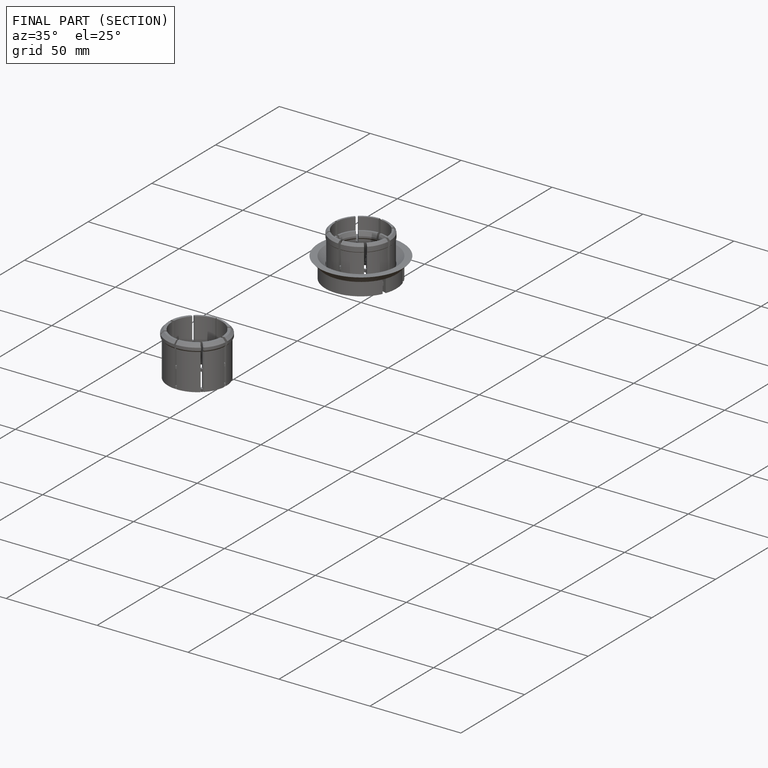
[diagram: finished part — half-section view (interior)]
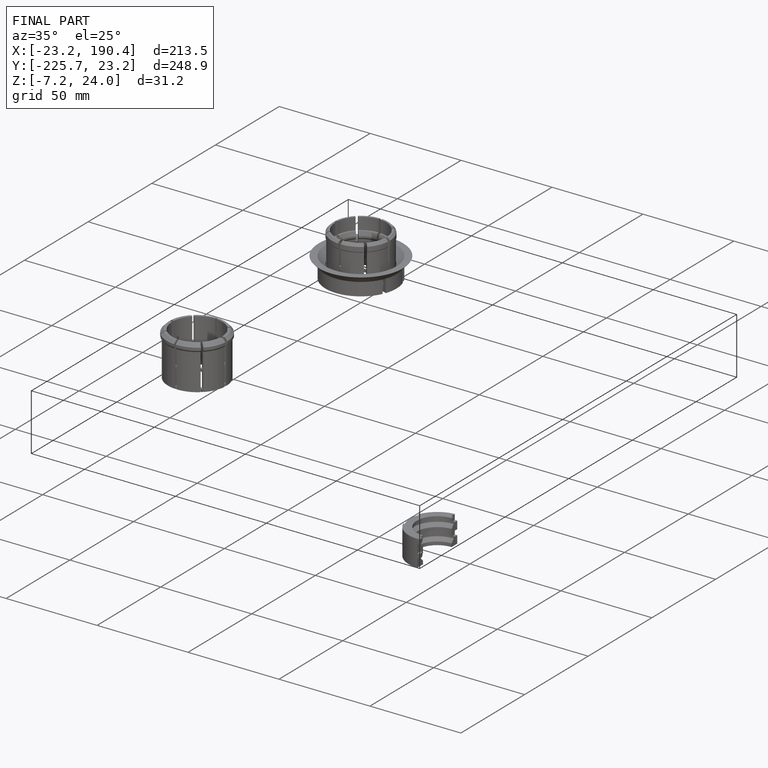
[diagram: finished part — iso view with bounding-box wireframe]
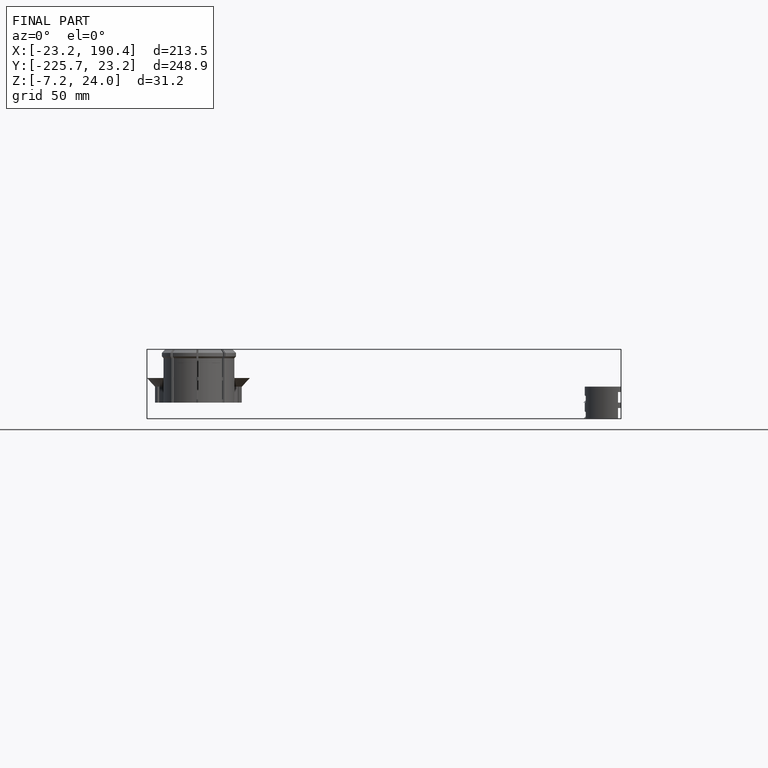
[diagram: finished part — front view with bounding-box wireframe]
